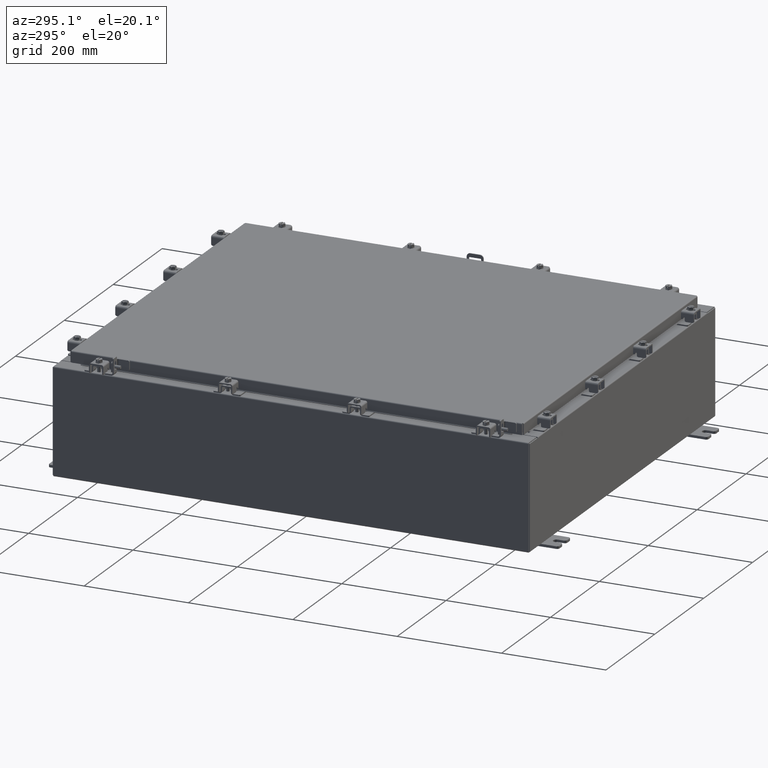
[diagram: clean part render]
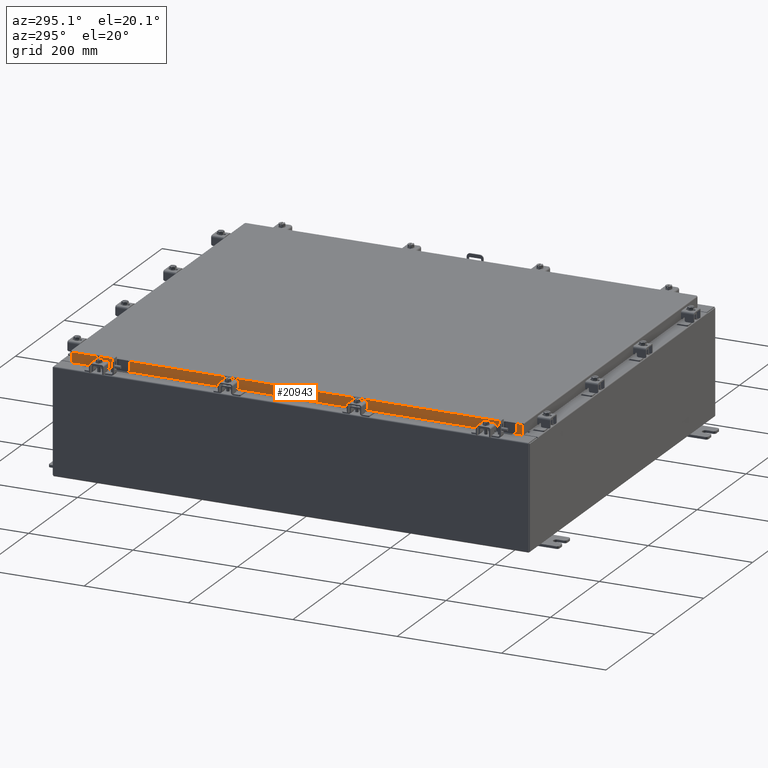
[diagram: same view with one face highlighted and labeled with its STEP entity id]
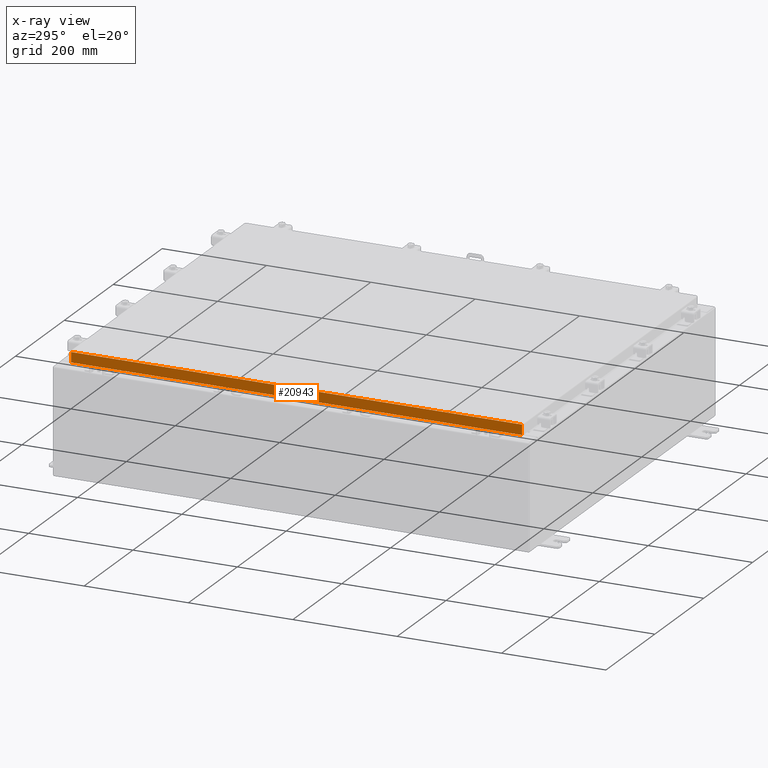
[diagram: x-ray of the same camera — body ghosted, the highlighted face saturated]
A machine part, auxiliary view. The second image highlights one B-rep face of the part: STEP entity #20943.
The next image is the same camera in x-ray: the body ghosted, the highlighted face saturated — about 0% of this face is hidden behind the body in this view.
In plain terms, the highlighted planar face has unit normal (1, 0, -0).
Its self-contained STEP definition (entity closure, byte-faithful):
#42 = LINE ( 'NONE', #20611, #23976 ) ;
#186 = VECTOR ( 'NONE', #9084, 39.37007874015748100 ) ;
#1007 = VERTEX_POINT ( 'NONE', #10348 ) ;
#2587 = DIRECTION ( 'NONE',  ( 3.491332948470575600E-031, -1.000000000000000000, -9.516562228463834600E-046 ) ) ;
#3021 = VECTOR ( 'NONE', #9362, 39.37007874015748100 ) ;
#3539 = DIRECTION ( 'NONE',  ( -2.818880942772360100E-015, 0.0000000000000000000, -1.000000000000000000 ) ) ;
#4032 = VERTEX_POINT ( 'NONE', #22555 ) ;
#5041 = DIRECTION ( 'NONE',  ( -2.818880942772360500E-015, 6.982962677686269100E-015, -1.000000000000000000 ) ) ;
#6291 = CARTESIAN_POINT ( 'NONE',  ( -14.07799999999999900, -17.09400000000000100, -0.08770000000000026400 ) ) ;
#6500 = CARTESIAN_POINT ( 'NONE',  ( -14.07799999999999400, 16.25515786437627200, -0.8500000000000020900 ) ) ;
#6504 = EDGE_CURVE ( 'NONE', #1007, #11996, #13268, .T. ) ;
#6746 = EDGE_LOOP ( 'NONE', ( #15874, #10729, #18382, #23729, #10801, #14934 ) ) ;
#6946 = LINE ( 'NONE', #6291, #11384 ) ;
#9067 = PLANE ( 'NONE',  #11356 ) ;
#9084 = DIRECTION ( 'NONE',  ( 4.379057701015054300E-047, 1.000000000000000000, 1.238552822680358400E-016 ) ) ;
#9228 = LINE ( 'NONE', #11259, #3021 ) ;
#9360 = EDGE_CURVE ( 'NONE', #1007, #4032, #6946, .T. ) ;
#9362 = DIRECTION ( 'NONE',  ( 4.379057701015054300E-047, 1.000000000000000000, 1.238552822680358400E-016 ) ) ;
#9407 = CARTESIAN_POINT ( 'NONE',  ( -14.07799999999999400, -16.25515786437626900, -0.8500000000000020900 ) ) ;
#10348 = CARTESIAN_POINT ( 'NONE',  ( -14.07799999999999900, 17.00515786437626500, -0.08770000000000026400 ) ) ;
#10729 = ORIENTED_EDGE ( 'NONE', *, *, #6504, .T. ) ;
#10801 = ORIENTED_EDGE ( 'NONE', *, *, #18109, .F. ) ;
#11259 = CARTESIAN_POINT ( 'NONE',  ( -14.07800000000000300, -17.09400000000000100, -0.8499999999999999800 ) ) ;
#11356 = AXIS2_PLACEMENT_3D ( 'NONE', #12947, #14822, #3539 ) ;
#11384 = VECTOR ( 'NONE', #2587, 39.37007874015748100 ) ;
#11800 = FACE_OUTER_BOUND ( 'NONE', #6746, .T. ) ;
#11996 = VERTEX_POINT ( 'NONE', #24478 ) ;
#12084 = VECTOR ( 'NONE', #5041, 39.37007874015748100 ) ;
#12857 = VECTOR ( 'NONE', #18842, 39.37007874015748100 ) ;
#12947 = CARTESIAN_POINT ( 'NONE',  ( -14.07799999999999900, 0.0000000000000000000, 4.043135030623109600E-014 ) ) ;
#13268 = LINE ( 'NONE', #16337, #12084 ) ;
#13690 = VERTEX_POINT ( 'NONE', #6500 ) ;
#14822 = DIRECTION ( 'NONE',  ( 1.000000000000000000, 3.491332948470575600E-031, -2.818880942772360100E-015 ) ) ;
#14934 = ORIENTED_EDGE ( 'NONE', *, *, #20295, .F. ) ;
#15214 = LINE ( 'NONE', #20425, #186 ) ;
#15403 = CARTESIAN_POINT ( 'NONE',  ( -14.07799999999999400, -16.25515786437626500, -0.8500000000000020900 ) ) ;
#15520 = VERTEX_POINT ( 'NONE', #15403 ) ;
#15874 = ORIENTED_EDGE ( 'NONE', *, *, #9360, .F. ) ;
#16004 = EDGE_CURVE ( 'NONE', #13690, #11996, #15214, .T. ) ;
#16119 = EDGE_CURVE ( 'NONE', #15520, #13690, #17870, .T. ) ;
#16337 = CARTESIAN_POINT ( 'NONE',  ( -14.07799999999999900, 17.00515786437626500, 1.584471836325272600E-013 ) ) ;
#16755 = DIRECTION ( 'NONE',  ( -2.818880942772360500E-015, 6.982962677686269100E-015, -1.000000000000000000 ) ) ;
#17870 = LINE ( 'NONE', #9407, #12857 ) ;
#18109 = EDGE_CURVE ( 'NONE', #24218, #15520, #9228, .T. ) ;
#18382 = ORIENTED_EDGE ( 'NONE', *, *, #16004, .F. ) ;
#18842 = DIRECTION ( 'NONE',  ( -0.0000000000000000000, 1.000000000000000000, -0.0000000000000000000 ) ) ;
#20295 = EDGE_CURVE ( 'NONE', #4032, #24218, #42, .T. ) ;
#20425 = CARTESIAN_POINT ( 'NONE',  ( -14.07800000000000300, -17.09400000000000100, -0.8499999999999999800 ) ) ;
#20611 = CARTESIAN_POINT ( 'NONE',  ( -14.07799999999999900, -17.00515786437627200, -0.07470000000000015500 ) ) ;
#20723 = CARTESIAN_POINT ( 'NONE',  ( -14.07800000000000300, -17.00515786437626900, -0.8499999999999999800 ) ) ;
#20943 = ADVANCED_FACE ( 'NONE', ( #11800 ), #9067, .F. ) ;
#22555 = CARTESIAN_POINT ( 'NONE',  ( -14.07799999999999900, -17.00515786437626900, -0.08770000000000026400 ) ) ;
#23729 = ORIENTED_EDGE ( 'NONE', *, *, #16119, .F. ) ;
#23976 = VECTOR ( 'NONE', #16755, 39.37007874015748100 ) ;
#24218 = VERTEX_POINT ( 'NONE', #20723 ) ;
#24478 = CARTESIAN_POINT ( 'NONE',  ( -14.07800000000000300, 17.00515786437627200, -0.8499999999999955400 ) ) ;